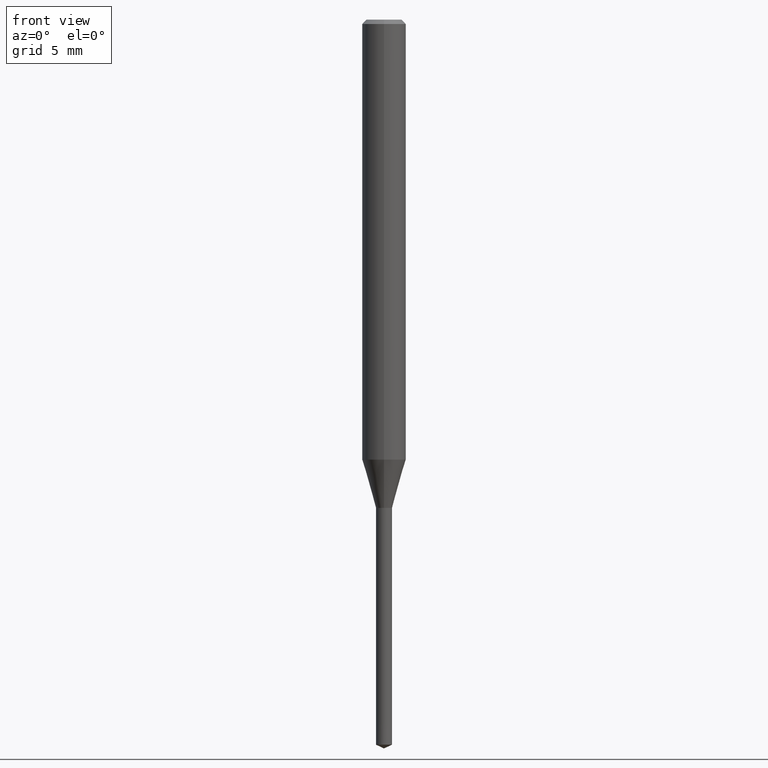
[diagram: clean part render]
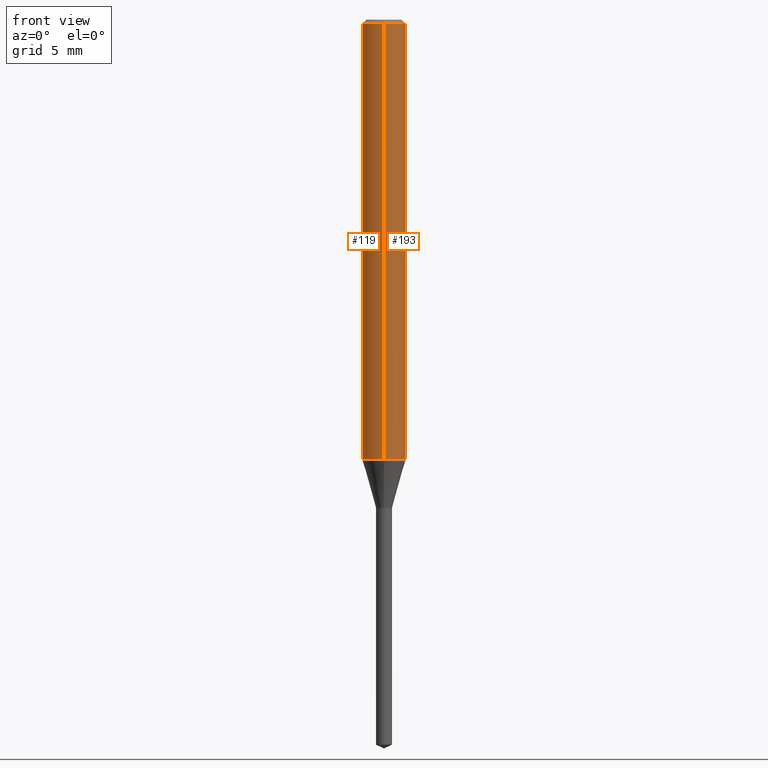
[diagram: same view with one multi-face feature highlighted, each face labeled with its STEP entity id]
A machine part, front view. The highlighted faces form ONE feature: a constant-radius fillet chain: 2 tangent blend faces with common blend radius 1.5 mm. The faces share edges in the B-rep.
Their STEP definitions:
[1] entity #119 (Cylinder):
#97=VERTEX_POINT('',#232);
#119=ADVANCED_FACE('',(#257),#258,.T.);
#121=VERTEX_POINT('',#260);
#135=EDGE_CURVE('',#173,#121,#276,.T.);
#157=EDGE_CURVE('',#173,#97,#299,.T.);
#159=VERTEX_POINT('',#301);
#173=VERTEX_POINT('',#317);
#185=EDGE_CURVE('',#159,#121,#332,.T.);
#203=EDGE_CURVE('',#97,#159,#353,.T.);
#232=CARTESIAN_POINT('',(1.83690953073357E-016,-1.5,-0.300000000000001));
#257=FACE_OUTER_BOUND('',#409,.T.);
#258=CYLINDRICAL_SURFACE('',#410,1.5);
#260=CARTESIAN_POINT('',(0.0,1.5,-30.187));
#276=CIRCLE('',#431,1.5);
#299=LINE('',#461,#462);
#301=CARTESIAN_POINT('',(0.0,1.5,-0.300000000000001));
#317=CARTESIAN_POINT('',(1.83690953073357E-016,-1.5,-30.187));
#332=LINE('',#502,#503);
#353=CIRCLE('',#531,1.5);
#409=EDGE_LOOP('',(#566,#567,#568,#569));
#410=AXIS2_PLACEMENT_3D('',#570,#571,#572);
#431=AXIS2_PLACEMENT_3D('',#593,#594,#595);
#461=CARTESIAN_POINT('',(1.83690953073357E-016,-1.5,-15.2435));
#462=VECTOR('',#619,1.0);
#502=CARTESIAN_POINT('',(-1.83690953073357E-016,1.5,-15.2435));
#503=VECTOR('',#667,1.0);
#531=AXIS2_PLACEMENT_3D('',#700,#701,#702);
#566=ORIENTED_EDGE('',*,*,#185,.T.);
#567=ORIENTED_EDGE('',*,*,#135,.F.);
#568=ORIENTED_EDGE('',*,*,#157,.T.);
#569=ORIENTED_EDGE('',*,*,#203,.T.);
#570=CARTESIAN_POINT('',(0.0,0.0,-15.2435));
#571=DIRECTION('',(-0.0,-0.0,1.0));
#572=DIRECTION('',(0.0,1.0,0.0));
#593=CARTESIAN_POINT('',(0.0,0.0,-30.187));
#594=DIRECTION('',(0.0,0.0,-1.0));
#595=DIRECTION('',(0.0,1.0,0.0));
#619=DIRECTION('',(-0.0,-0.0,1.0));
#667=DIRECTION('',(0.0,0.0,-1.0));
#700=CARTESIAN_POINT('',(0.0,0.0,-0.300000000000001));
#701=DIRECTION('',(0.0,0.0,-1.0));
#702=DIRECTION('',(0.0,1.0,0.0));
[2] entity #193 (Cylinder):
#97=VERTEX_POINT('',#232);
#105=EDGE_CURVE('',#121,#173,#241,.T.);
#121=VERTEX_POINT('',#260);
#157=EDGE_CURVE('',#173,#97,#299,.T.);
#159=VERTEX_POINT('',#301);
#173=VERTEX_POINT('',#317);
#185=EDGE_CURVE('',#159,#121,#332,.T.);
#193=ADVANCED_FACE('',(#340),#341,.T.);
#197=EDGE_CURVE('',#159,#97,#345,.T.);
#232=CARTESIAN_POINT('',(1.83690953073357E-016,-1.5,-0.300000000000001));
#241=CIRCLE('',#385,1.5);
#260=CARTESIAN_POINT('',(0.0,1.5,-30.187));
#299=LINE('',#461,#462);
#301=CARTESIAN_POINT('',(0.0,1.5,-0.300000000000001));
#317=CARTESIAN_POINT('',(1.83690953073357E-016,-1.5,-30.187));
#332=LINE('',#502,#503);
#340=FACE_OUTER_BOUND('',#516,.T.);
#341=CYLINDRICAL_SURFACE('',#517,1.5);
#345=CIRCLE('',#522,1.5);
#385=AXIS2_PLACEMENT_3D('',#544,#545,#546);
#461=CARTESIAN_POINT('',(1.83690953073357E-016,-1.5,-15.2435));
#462=VECTOR('',#619,1.0);
#502=CARTESIAN_POINT('',(-1.83690953073357E-016,1.5,-15.2435));
#503=VECTOR('',#667,1.0);
#516=EDGE_LOOP('',(#674,#675,#676,#677));
#517=AXIS2_PLACEMENT_3D('',#678,#679,#680);
#522=AXIS2_PLACEMENT_3D('',#681,#682,#683);
#544=CARTESIAN_POINT('',(0.0,0.0,-30.187));
#545=DIRECTION('',(0.0,0.0,-1.0));
#546=DIRECTION('',(0.0,1.0,0.0));
#619=DIRECTION('',(-0.0,-0.0,1.0));
#667=DIRECTION('',(0.0,0.0,-1.0));
#674=ORIENTED_EDGE('',*,*,#185,.F.);
#675=ORIENTED_EDGE('',*,*,#197,.T.);
#676=ORIENTED_EDGE('',*,*,#157,.F.);
#677=ORIENTED_EDGE('',*,*,#105,.F.);
#678=CARTESIAN_POINT('',(0.0,0.0,-15.2435));
#679=DIRECTION('',(-0.0,-0.0,1.0));
#680=DIRECTION('',(0.0,1.0,0.0));
#681=CARTESIAN_POINT('',(0.0,0.0,-0.300000000000001));
#682=DIRECTION('',(0.0,0.0,-1.0));
#683=DIRECTION('',(0.0,1.0,0.0));